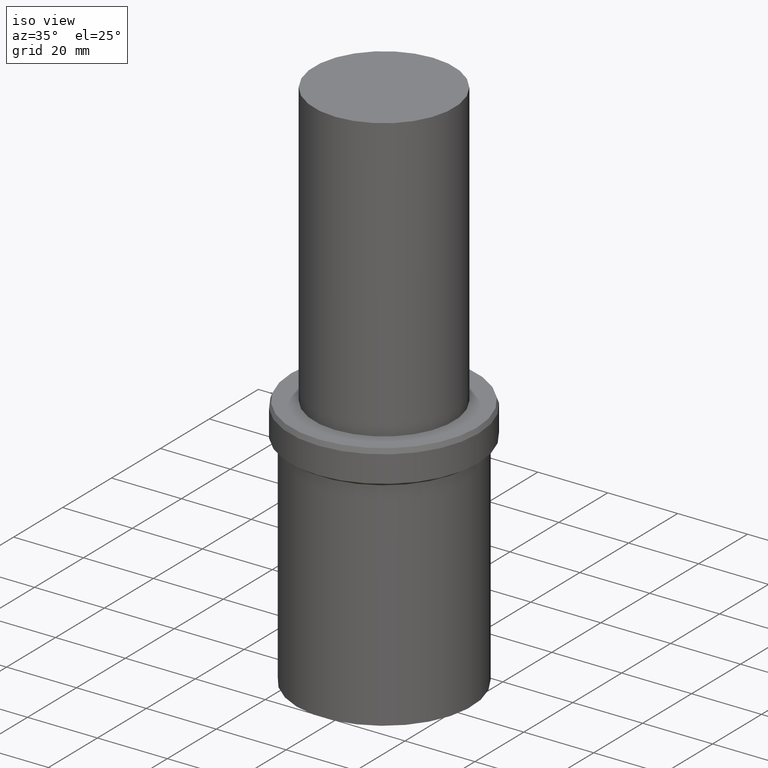
[diagram: clean part render]
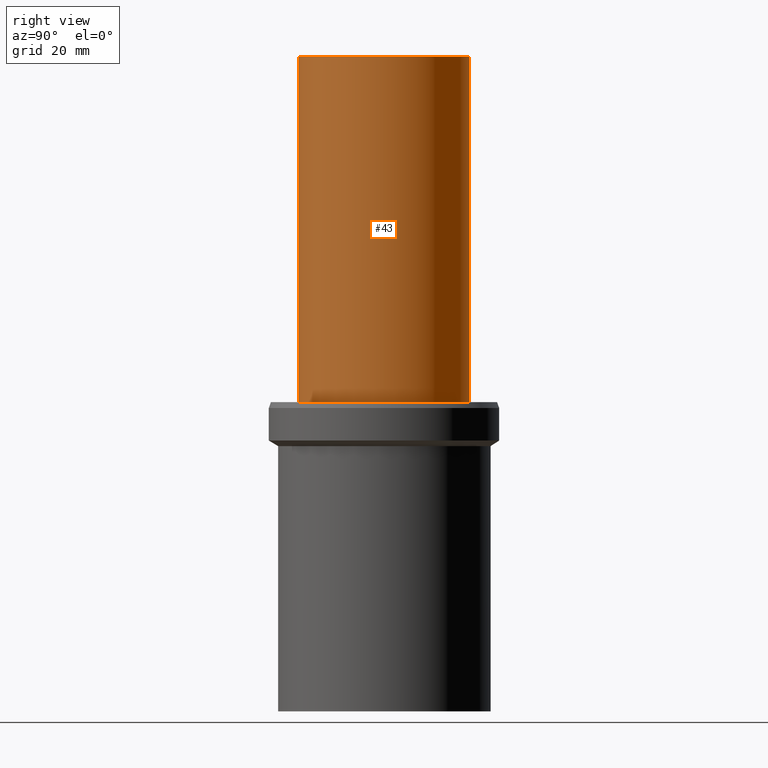
[diagram: tour spotlight — one face highlighted and labeled with its STEP entity id]
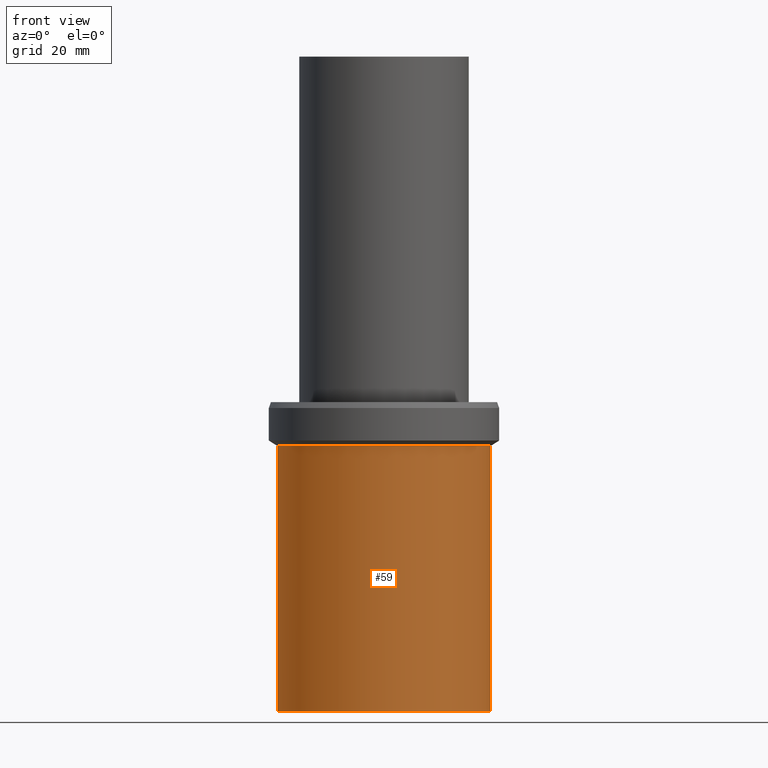
[diagram: tour spotlight — one face highlighted and labeled with its STEP entity id]
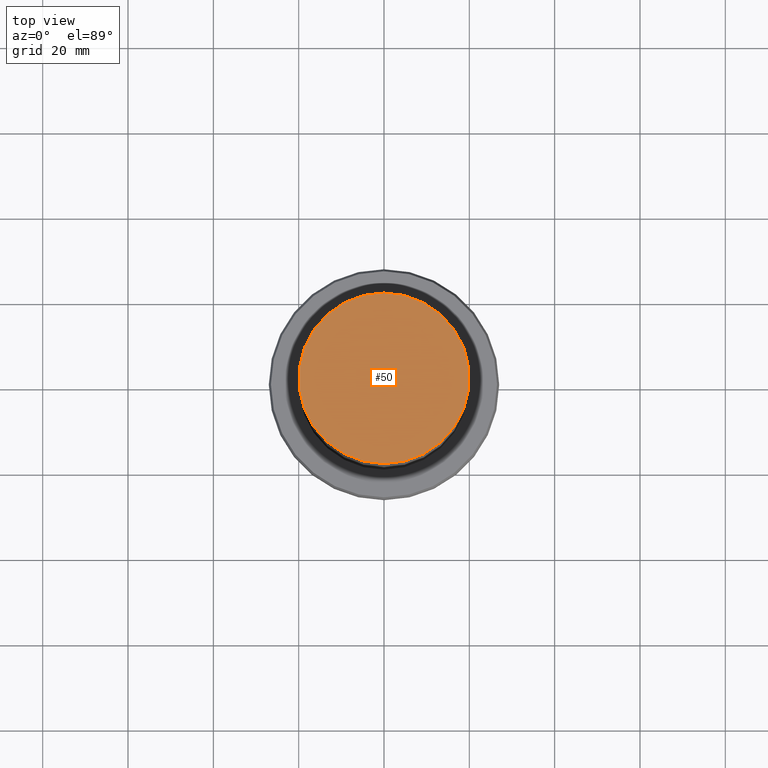
[diagram: tour spotlight — one face highlighted and labeled with its STEP entity id]
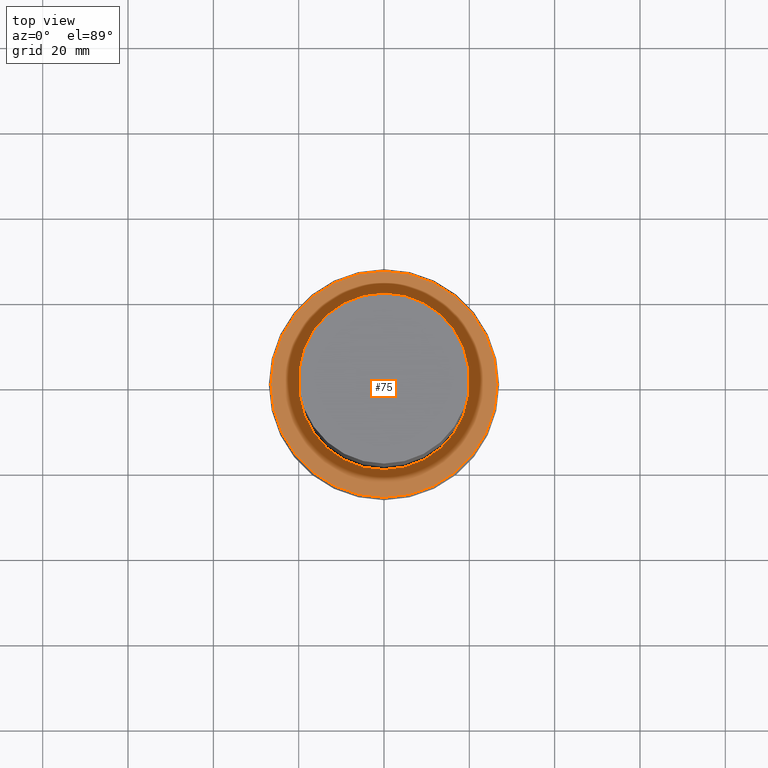
[diagram: tour spotlight — one face highlighted and labeled with its STEP entity id]
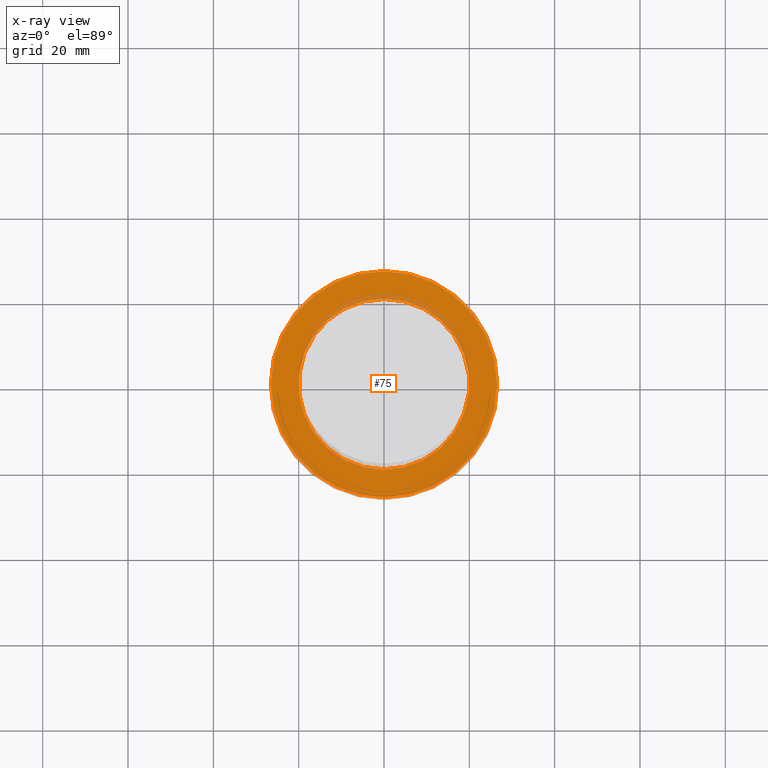
[diagram: x-ray of the same camera — body ghosted, this tour face saturated]
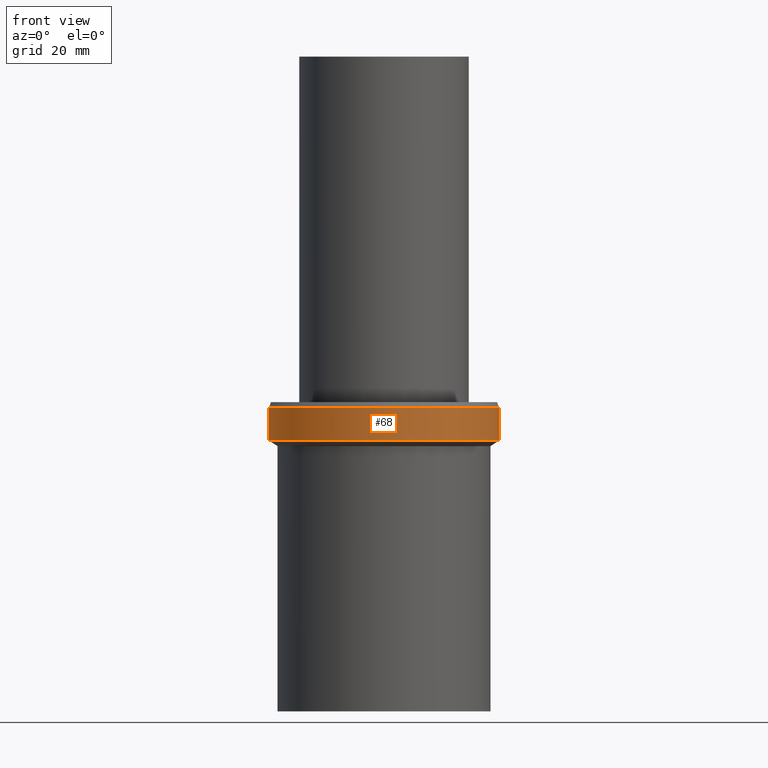
[diagram: tour spotlight — one face highlighted and labeled with its STEP entity id]
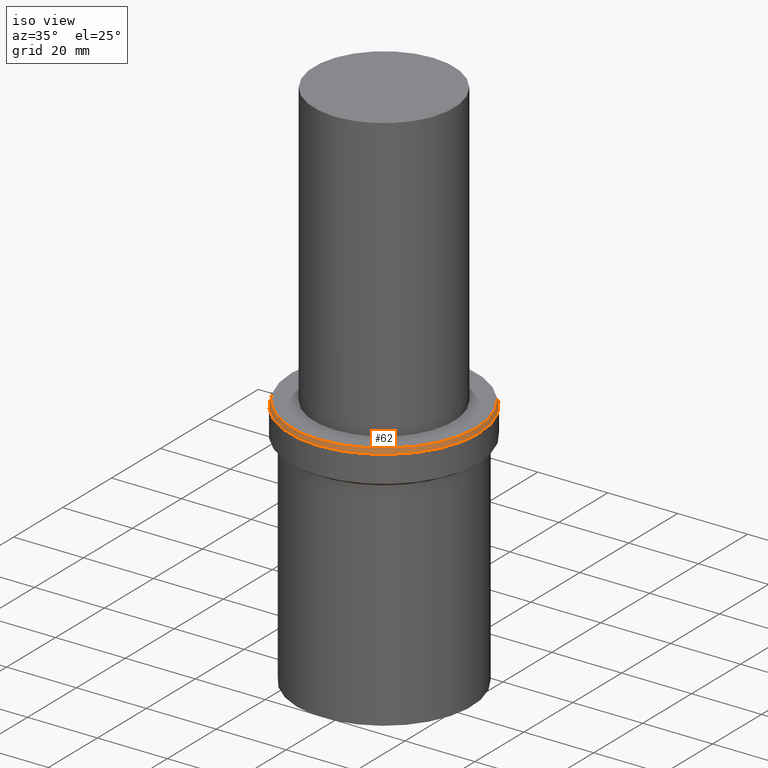
[diagram: tour spotlight — one face highlighted and labeled with its STEP entity id]
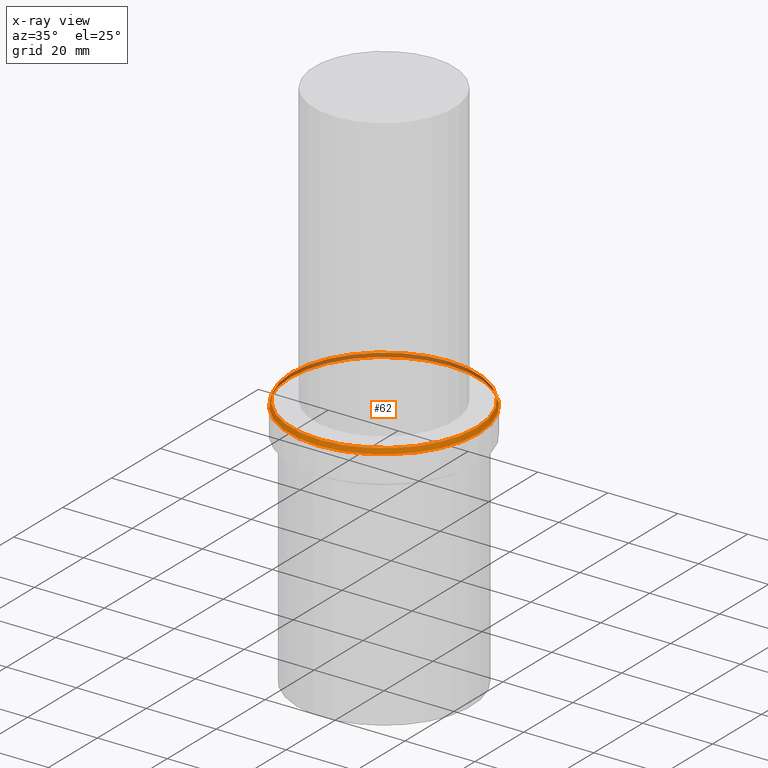
[diagram: x-ray of the same camera — body ghosted, this tour face saturated]
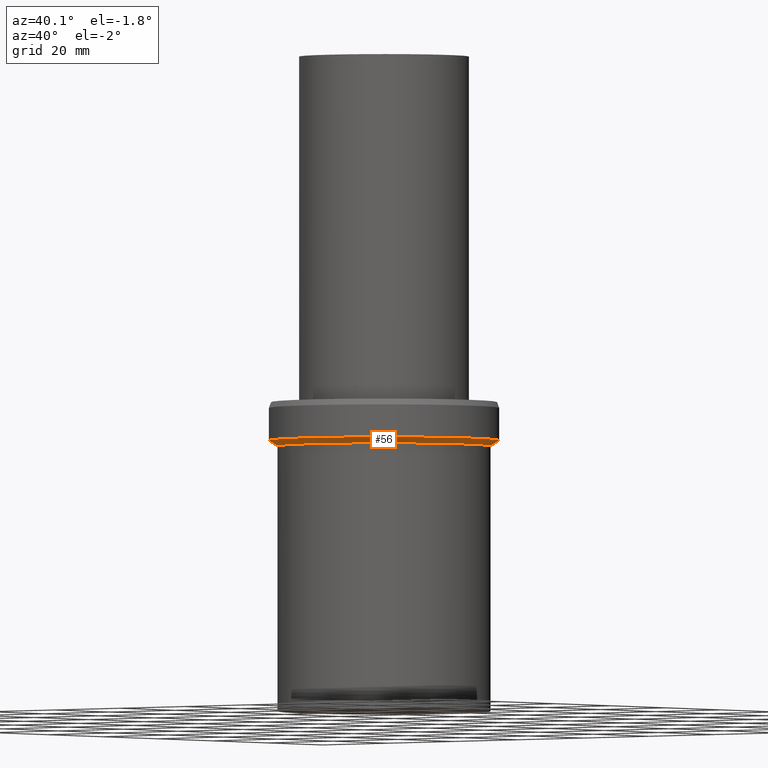
[diagram: tour spotlight — one face highlighted and labeled with its STEP entity id]
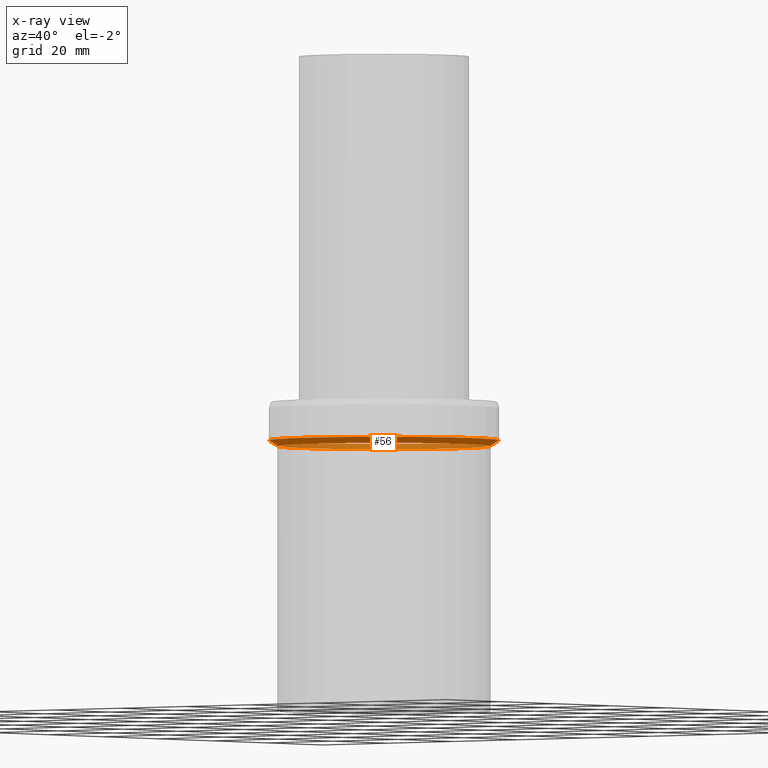
[diagram: x-ray of the same camera — body ghosted, this tour face saturated]
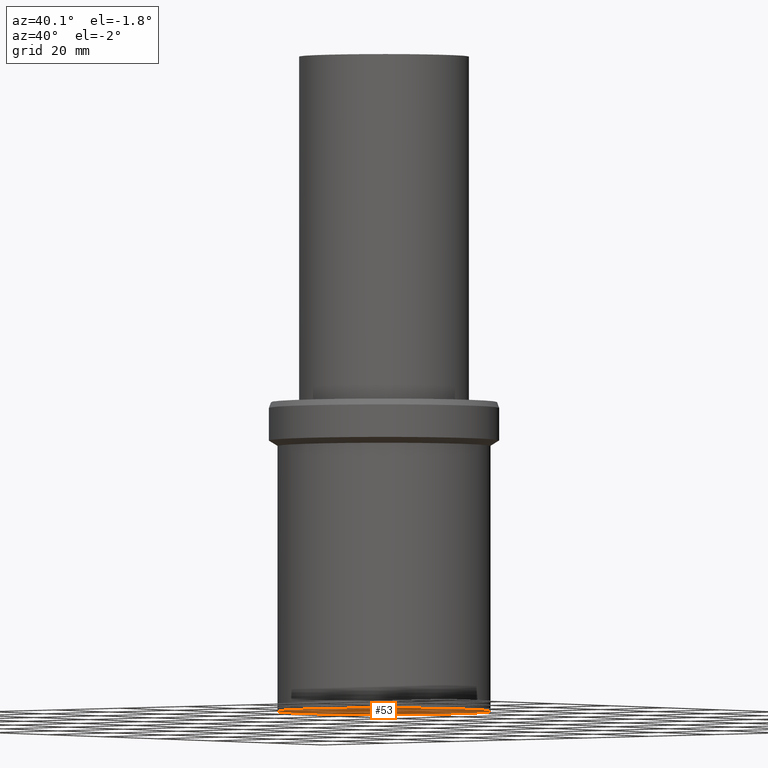
[diagram: tour spotlight — one face highlighted and labeled with its STEP entity id]
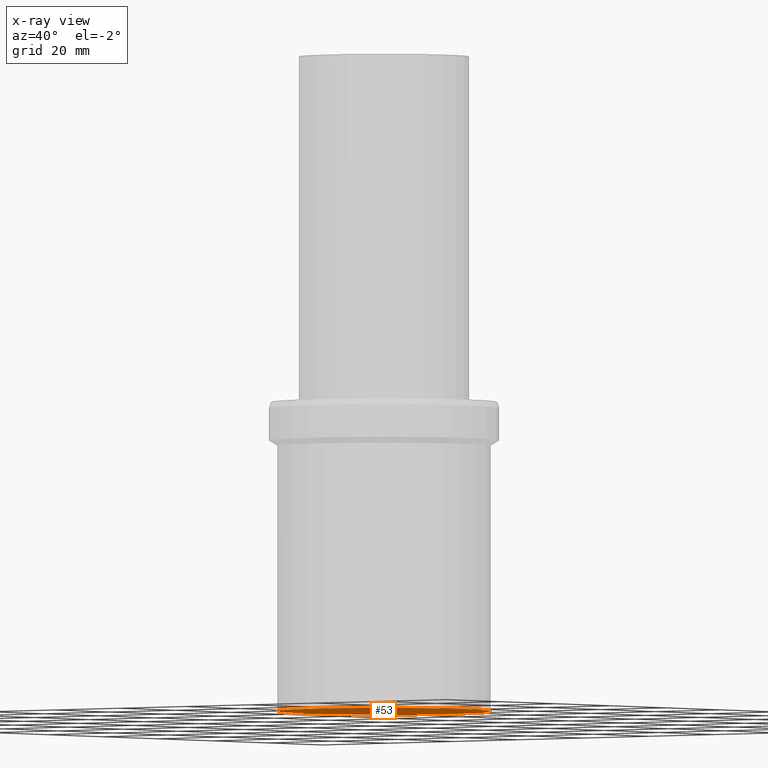
[diagram: x-ray of the same camera — body ghosted, this tour face saturated]
A machine part: a face-by-face anatomy tour. The part has 8 B-rep faces; the first image is the clean iso view, then the 8 largest visible faces are spotlighted one at a time (largest first), each with its STEP entity span.

Face 1 — right view, entity #43. In plain terms, the highlighted cylindrical surface (bore or boss wall) has radius 20 mm, axis along (0, 0, -1).
Definition (entity closure, byte-faithful):
#40=EDGE_CURVE('Unnamed[1]',#97,#97,#98,.T.);
#43=ADVANCED_FACE('Unnamed[1]',(#101,#102),#103,.T.);
#72=EDGE_CURVE('Unnamed[1]',#145,#145,#146,.T.);
#97=VERTEX_POINT('',#166);
#98=CIRCLE('',#167,20.0000000000027);
#101=FACE_BOUND('',#171,.T.);
#102=FACE_BOUND('',#172,.T.);
#103=CYLINDRICAL_SURFACE('',#173,20.0000000000027);
#145=VERTEX_POINT('',#225);
#146=CIRCLE('',#226,20.0000000000027);
#166=CARTESIAN_POINT('',(-9.39916418345635E-015,20.0000000000027,153.500000000007));
#167=AXIS2_PLACEMENT_3D('',#242,#243,#244);
#171=EDGE_LOOP('',(#246));
#172=EDGE_LOOP('',(#247));
#173=AXIS2_PLACEMENT_3D('',#248,#249,#250);
#225=CARTESIAN_POINT('',(-4.43934464690963E-015,20.0000000000027,72.5000000000077));
#226=AXIS2_PLACEMENT_3D('',#295,#296,#297);
#242=CARTESIAN_POINT('',(-9.39916418345635E-015,-1.87983283669127E-014,153.500000000007));
#243=DIRECTION('',(6.12323399573677E-017,1.22464679914735E-016,-1.0));
#244=DIRECTION('',(-1.23259516440783E-032,1.0,1.22464679914735E-016));
#246=ORIENTED_EDGE('',*,*,#72,.F.);
#247=ORIENTED_EDGE('',*,*,#40,.T.);
#248=CARTESIAN_POINT('',(-6.91925441518298E-015,-1.3838508830366E-014,113.000000000007));
#249=DIRECTION('',(6.12323399573677E-017,1.22464679914735E-016,-1.0));
#250=DIRECTION('',(-1.23259516440783E-032,1.0,1.22464679914735E-016));
#295=CARTESIAN_POINT('',(-4.43934464690962E-015,-8.87868929381925E-015,72.5000000000077));
#296=DIRECTION('',(6.12323399573677E-017,1.22464679914735E-016,-1.0));
#297=DIRECTION('',(-1.23259516440783E-032,1.0,1.22464679914735E-016));

Face 2 — front view, entity #59. In plain terms, the highlighted cylindrical surface (bore or boss wall) has radius 25 mm, axis along (0, 0, -1).
Definition (entity closure, byte-faithful):
#47=EDGE_CURVE('Unnamed[1]',#108,#108,#109,.T.);
#59=ADVANCED_FACE('Unnamed[1]',(#125,#126),#127,.T.);
#77=EDGE_CURVE('Unnamed[1]',#153,#153,#154,.T.);
#108=VERTEX_POINT('',#180);
#109=CIRCLE('',#181,25.000000000004);
#125=FACE_BOUND('',#201,.T.);
#126=FACE_BOUND('',#202,.T.);
#127=CYLINDRICAL_SURFACE('',#203,24.999999999998);
#153=VERTEX_POINT('',#235);
#154=CIRCLE('',#236,24.9999999999919);
#180=CARTESIAN_POINT('',(-3.80845404822236E-015,25.000000000004,62.1967746271653));
#181=AXIS2_PLACEMENT_3D('',#254,#255,#256);
#201=EDGE_LOOP('',(#274));
#202=EDGE_LOOP('',(#275));
#203=AXIS2_PLACEMENT_3D('',#276,#277,#278);
#235=CARTESIAN_POINT('',(0.0,24.9999999999919,0.0));
#236=AXIS2_PLACEMENT_3D('',#304,#305,#306);
#254=CARTESIAN_POINT('',(-3.80845404822236E-015,-7.61690809644472E-015,62.1967746271653));
#255=DIRECTION('',(6.12323399573677E-017,1.22464679914735E-016,-1.0));
#256=DIRECTION('',(-1.23259516440783E-032,1.0,1.22464679914735E-016));
#274=ORIENTED_EDGE('',*,*,#77,.F.);
#275=ORIENTED_EDGE('',*,*,#47,.T.);
#276=CARTESIAN_POINT('',(-1.90422702411118E-015,-3.80845404822236E-015,31.0983873135826));
#277=DIRECTION('',(6.12323399573677E-017,1.22464679914735E-016,-1.0));
#278=DIRECTION('',(-1.23259516440783E-032,1.0,1.22464679914735E-016));
#304=CARTESIAN_POINT('',(0.0,0.0,0.0));
#305=DIRECTION('',(6.12323399573677E-017,1.22464679914735E-016,-1.0));
#306=DIRECTION('',(-1.23259516440783E-032,1.0,1.22464679914735E-016));

Face 3 — top view, entity #50. In plain terms, the highlighted planar face has unit normal (-0, 0, 1).
Definition (entity closure, byte-faithful):
#40=EDGE_CURVE('Unnamed[1]',#97,#97,#98,.T.);
#50=ADVANCED_FACE('Unnamed[1]',(#112),#113,.T.);
#97=VERTEX_POINT('',#166);
#98=CIRCLE('',#167,20.0000000000027);
#112=FACE_OUTER_BOUND('',#185,.T.);
#113=PLANE('',#186);
#166=CARTESIAN_POINT('',(-9.39916418345635E-015,20.0000000000027,153.500000000007));
#167=AXIS2_PLACEMENT_3D('',#242,#243,#244);
#185=EDGE_LOOP('',(#258));
#186=AXIS2_PLACEMENT_3D('',#259,#260,#261);
#242=CARTESIAN_POINT('',(-9.39916418345635E-015,-1.87983283669127E-014,153.500000000007));
#243=DIRECTION('',(6.12323399573677E-017,1.22464679914735E-016,-1.0));
#244=DIRECTION('',(-1.23259516440783E-032,1.0,1.22464679914735E-016));
#258=ORIENTED_EDGE('',*,*,#40,.F.);
#259=CARTESIAN_POINT('',(-9.39916418345637E-015,10.0000000000013,153.500000000007));
#260=DIRECTION('',(-6.12323399573677E-017,4.81944413517655E-014,1.0));
#261=DIRECTION('',(-2.94623126417595E-030,-1.0,4.81944413517655E-014));

Face 4 — top view, entity #75. An x-ray twin of the same camera follows (body ghosted, this face saturated) — the face is partly hidden behind the body. In plain terms, the highlighted planar face has unit normal (-0, -0, 1).
Definition (entity closure, byte-faithful):
#72=EDGE_CURVE('Unnamed[1]',#145,#145,#146,.T.);
#75=ADVANCED_FACE('Unnamed[1]',(#149,#150),#151,.T.);
#79=EDGE_CURVE('Unnamed[1]',#156,#156,#157,.T.);
#145=VERTEX_POINT('',#225);
#146=CIRCLE('',#226,20.0000000000027);
#149=FACE_OUTER_BOUND('',#230,.T.);
#150=FACE_BOUND('',#231,.T.);
#151=PLANE('',#232);
#156=VERTEX_POINT('',#239);
#157=CIRCLE('',#240,26.4999999999965);
#225=CARTESIAN_POINT('',(-4.43934464690963E-015,20.0000000000027,72.5000000000077));
#226=AXIS2_PLACEMENT_3D('',#295,#296,#297);
#230=EDGE_LOOP('',(#299));
#231=EDGE_LOOP('',(#300));
#232=AXIS2_PLACEMENT_3D('',#301,#302,#303);
#239=CARTESIAN_POINT('',(-4.43934464690963E-015,26.4999999999965,72.5000000000077));
#240=AXIS2_PLACEMENT_3D('',#307,#308,#309);
#295=CARTESIAN_POINT('',(-4.43934464690962E-015,-8.87868929381925E-015,72.5000000000077));
#296=DIRECTION('',(6.12323399573677E-017,1.22464679914735E-016,-1.0));
#297=DIRECTION('',(-1.23259516440783E-032,1.0,1.22464679914735E-016));
#299=ORIENTED_EDGE('',*,*,#79,.F.);
#300=ORIENTED_EDGE('',*,*,#72,.T.);
#301=CARTESIAN_POINT('',(-4.43934464690963E-015,23.2499999999996,72.5000000000077));
#302=DIRECTION('',(-6.12323399573677E-017,-2.03546435311683E-015,1.0));
#303=DIRECTION('',(1.29463397971922E-031,-1.0,-2.03546435311683E-015));
#307=CARTESIAN_POINT('',(-4.43934464690963E-015,-8.87868929381925E-015,72.5000000000077));
#308=DIRECTION('',(6.12323399573676E-017,1.22464679914735E-016,-1.0));
#309=DIRECTION('',(-1.23259516440783E-032,1.0,1.22464679914735E-016));

Face 5 — front view, entity #68. In plain terms, the highlighted cylindrical surface (bore or boss wall) has radius 27 mm, axis along (0, 0, -1).
Definition (entity closure, byte-faithful):
#45=EDGE_CURVE('Unnamed[1]',#105,#105,#106,.T.);
#68=ADVANCED_FACE('Unnamed[1]',(#138,#139),#140,.T.);
#70=EDGE_CURVE('Unnamed[1]',#142,#142,#143,.T.);
#105=VERTEX_POINT('',#176);
#106=CIRCLE('',#177,26.9999999999945);
#138=FACE_BOUND('',#216,.T.);
#139=FACE_BOUND('',#217,.T.);
#140=CYLINDRICAL_SURFACE('',#218,26.9999999999945);
#142=VERTEX_POINT('',#221);
#143=CIRCLE('',#222,26.9999999999945);
#176=CARTESIAN_POINT('',(-3.88825358729306E-015,26.9999999999945,63.5000000000035));
#177=AXIS2_PLACEMENT_3D('',#251,#252,#253);
#216=EDGE_LOOP('',(#287));
#217=EDGE_LOOP('',(#288));
#218=AXIS2_PLACEMENT_3D('',#289,#290,#291);
#221=CARTESIAN_POINT('',(-4.35522741122323E-015,26.9999999999945,71.126261290284));
#222=AXIS2_PLACEMENT_3D('',#292,#293,#294);
#251=CARTESIAN_POINT('',(-3.88825358729306E-015,-7.77650717458613E-015,63.5000000000035));
#252=DIRECTION('',(6.12323399573677E-017,1.22464679914735E-016,-1.0));
#253=DIRECTION('',(-1.23259516440783E-032,1.0,1.22464679914735E-016));
#287=ORIENTED_EDGE('',*,*,#45,.F.);
#288=ORIENTED_EDGE('',*,*,#70,.T.);
#289=CARTESIAN_POINT('',(-4.12174049925815E-015,-8.24348099851629E-015,67.3131306451438));
#290=DIRECTION('',(6.12323399573677E-017,1.22464679914735E-016,-1.0));
#291=DIRECTION('',(-1.23259516440783E-032,1.0,1.22464679914735E-016));
#292=CARTESIAN_POINT('',(-4.35522741122323E-015,-8.71045482244646E-015,71.126261290284));
#293=DIRECTION('',(6.12323399573677E-017,1.22464679914735E-016,-1.0));
#294=DIRECTION('',(-1.23259516440783E-032,1.0,1.22464679914735E-016));

Face 6 — iso view, entity #62. An x-ray twin of the same camera follows (body ghosted, this face saturated) — the face is partly hidden behind the body. In plain terms, the highlighted conical surface has half-angle 20 deg.
Definition (entity closure, byte-faithful):
#62=ADVANCED_FACE('Unnamed[1]',(#130,#131),#132,.T.);
#70=EDGE_CURVE('Unnamed[1]',#142,#142,#143,.T.);
#79=EDGE_CURVE('Unnamed[1]',#156,#156,#157,.T.);
#130=FACE_BOUND('',#207,.T.);
#131=FACE_BOUND('',#208,.T.);
#132=CONICAL_SURFACE('',#209,26.7499999999955,0.349065850398426);
#142=VERTEX_POINT('',#221);
#143=CIRCLE('',#222,26.9999999999945);
#156=VERTEX_POINT('',#239);
#157=CIRCLE('',#240,26.4999999999965);
#207=EDGE_LOOP('',(#280));
#208=EDGE_LOOP('',(#281));
#209=AXIS2_PLACEMENT_3D('',#282,#283,#284);
#221=CARTESIAN_POINT('',(-4.35522741122323E-015,26.9999999999945,71.126261290284));
#222=AXIS2_PLACEMENT_3D('',#292,#293,#294);
#239=CARTESIAN_POINT('',(-4.43934464690963E-015,26.4999999999965,72.5000000000077));
#240=AXIS2_PLACEMENT_3D('',#307,#308,#309);
#280=ORIENTED_EDGE('',*,*,#70,.F.);
#281=ORIENTED_EDGE('',*,*,#79,.T.);
#282=CARTESIAN_POINT('',(-4.39728602906643E-015,-8.79457205813285E-015,71.8131306451458));
#283=DIRECTION('',(6.12323399573677E-017,1.22464679914735E-016,-1.0));
#284=DIRECTION('',(-1.23259516440783E-032,1.0,1.22464679914735E-016));
#292=CARTESIAN_POINT('',(-4.35522741122323E-015,-8.71045482244646E-015,71.126261290284));
#293=DIRECTION('',(6.12323399573677E-017,1.22464679914735E-016,-1.0));
#294=DIRECTION('',(-1.23259516440783E-032,1.0,1.22464679914735E-016));
#307=CARTESIAN_POINT('',(-4.43934464690963E-015,-8.87868929381925E-015,72.5000000000077));
#308=DIRECTION('',(6.12323399573676E-017,1.22464679914735E-016,-1.0));
#309=DIRECTION('',(-1.23259516440783E-032,1.0,1.22464679914735E-016));

Face 7 — auxiliary view, entity #56. An x-ray twin of the same camera follows (body ghosted, this face saturated) — the face is partly hidden behind the body. In plain terms, the highlighted conical surface has half-angle 56.911 deg.
Definition (entity closure, byte-faithful):
#45=EDGE_CURVE('Unnamed[1]',#105,#105,#106,.T.);
#47=EDGE_CURVE('Unnamed[1]',#108,#108,#109,.T.);
#56=ADVANCED_FACE('Unnamed[1]',(#120,#121),#122,.T.);
#105=VERTEX_POINT('',#176);
#106=CIRCLE('',#177,26.9999999999945);
#108=VERTEX_POINT('',#180);
#109=CIRCLE('',#181,25.000000000004);
#120=FACE_BOUND('',#195,.T.);
#121=FACE_BOUND('',#196,.T.);
#122=CONICAL_SURFACE('',#197,25.9999999999993,0.993288242785374);
#176=CARTESIAN_POINT('',(-3.88825358729306E-015,26.9999999999945,63.5000000000035));
#177=AXIS2_PLACEMENT_3D('',#251,#252,#253);
#180=CARTESIAN_POINT('',(-3.80845404822236E-015,25.000000000004,62.1967746271653));
#181=AXIS2_PLACEMENT_3D('',#254,#255,#256);
#195=EDGE_LOOP('',(#268));
#196=EDGE_LOOP('',(#269));
#197=AXIS2_PLACEMENT_3D('',#270,#271,#272);
#251=CARTESIAN_POINT('',(-3.88825358729306E-015,-7.77650717458613E-015,63.5000000000035));
#252=DIRECTION('',(6.12323399573677E-017,1.22464679914735E-016,-1.0));
#253=DIRECTION('',(-1.23259516440783E-032,1.0,1.22464679914735E-016));
#254=CARTESIAN_POINT('',(-3.80845404822236E-015,-7.61690809644472E-015,62.1967746271653));
#255=DIRECTION('',(6.12323399573677E-017,1.22464679914735E-016,-1.0));
#256=DIRECTION('',(-1.23259516440783E-032,1.0,1.22464679914735E-016));
#268=ORIENTED_EDGE('',*,*,#47,.F.);
#269=ORIENTED_EDGE('',*,*,#45,.T.);
#270=CARTESIAN_POINT('',(-3.84835381775771E-015,-7.69670763551542E-015,62.8483873135844));
#271=DIRECTION('',(-6.12323399573676E-017,-1.22464679914735E-016,1.0));
#272=DIRECTION('',(-1.23259516440783E-032,1.0,1.22464679914735E-016));

Face 8 — auxiliary view, entity #53. An x-ray twin of the same camera follows (body ghosted, this face saturated) — the face is partly hidden behind the body. In plain terms, the highlighted planar face has unit normal (0, -0, -1).
Definition (entity closure, byte-faithful):
#53=ADVANCED_FACE('Unnamed[1]',(#116),#117,.T.);
#77=EDGE_CURVE('Unnamed[1]',#153,#153,#154,.T.);
#116=FACE_OUTER_BOUND('',#190,.T.);
#117=PLANE('',#191);
#153=VERTEX_POINT('',#235);
#154=CIRCLE('',#236,24.9999999999919);
#190=EDGE_LOOP('',(#263));
#191=AXIS2_PLACEMENT_3D('',#264,#265,#266);
#235=CARTESIAN_POINT('',(0.0,24.9999999999919,0.0));
#236=AXIS2_PLACEMENT_3D('',#304,#305,#306);
#263=ORIENTED_EDGE('',*,*,#77,.T.);
#264=CARTESIAN_POINT('',(-2.03526113547021E-028,12.499999999996,3.31823457599967E-012));
#265=DIRECTION('',(6.12323399573677E-017,-2.65052084305841E-013,-1.0));
#266=DIRECTION('',(1.62249321798933E-029,1.0,-2.65052084305841E-013));
#304=CARTESIAN_POINT('',(0.0,0.0,0.0));
#305=DIRECTION('',(6.12323399573677E-017,1.22464679914735E-016,-1.0));
#306=DIRECTION('',(-1.23259516440783E-032,1.0,1.22464679914735E-016));